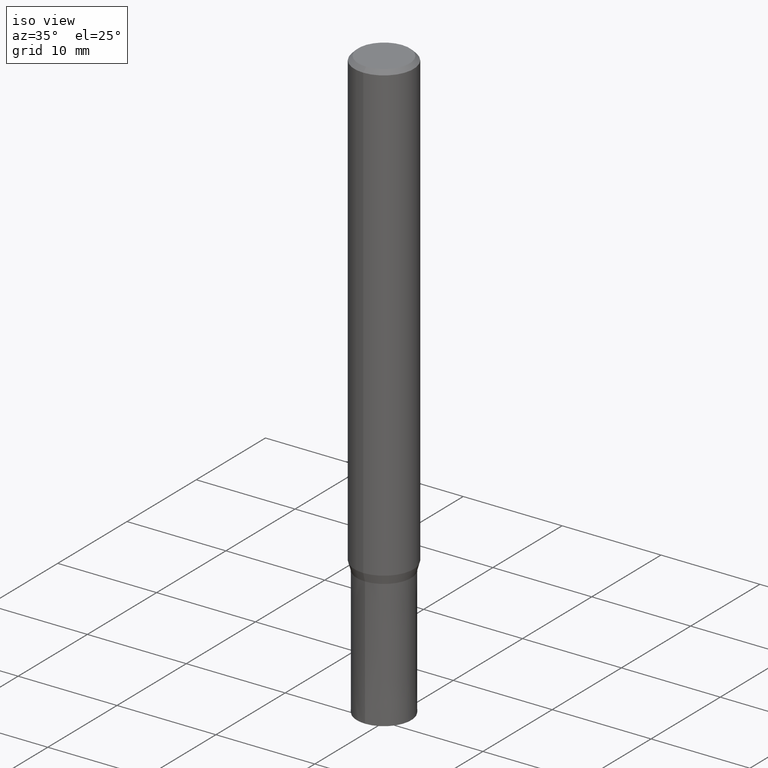
[diagram: clean part render]
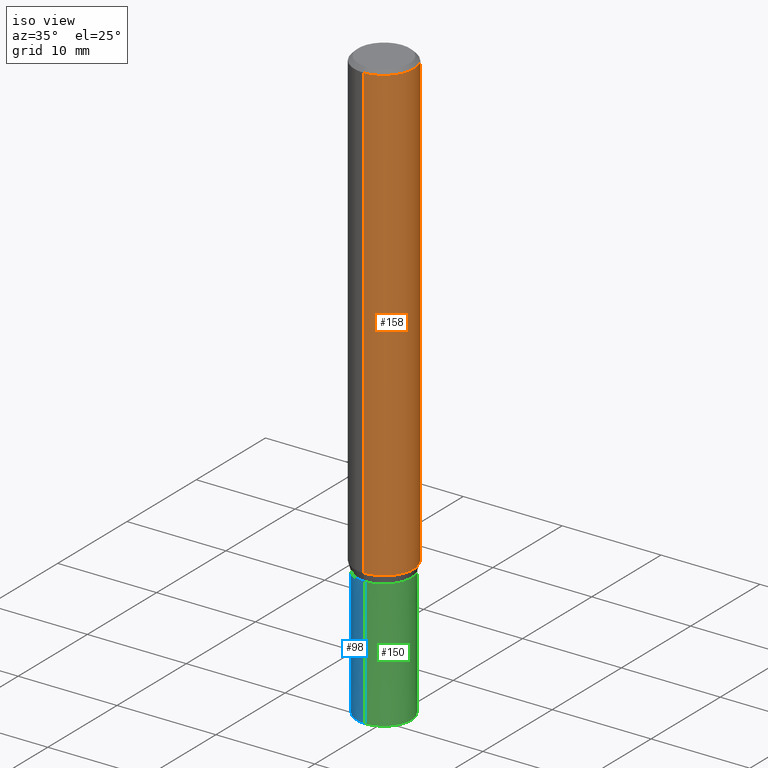
[diagram: same view with three faces highlighted in distinct colors, each labeled with its STEP entity id]
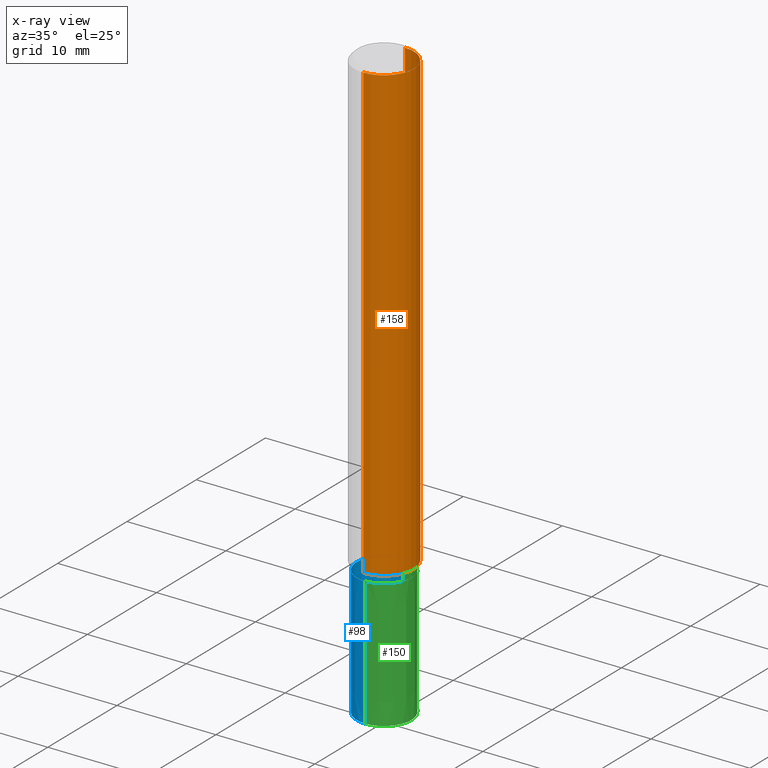
[diagram: x-ray of the same camera — body ghosted, the three highlighted faces saturated]
A machine part, iso view with three faces highlighted in distinct colors.
The next image is the same camera in x-ray (body ghosted, the three faces saturated) — at least one of them is partly hidden behind the body in this view.
Their STEP definitions:

[orange] entity #158 — the highlighted cylindrical surface (edge-blend (fillet) strip) has radius 3 mm, axis along (-0, -0, 1).
#90=EDGE_CURVE('',#136,#108,#212,.T.);
#108=VERTEX_POINT('',#234);
#116=EDGE_CURVE('',#152,#154,#242,.T.);
#136=VERTEX_POINT('',#264);
#138=EDGE_CURVE('',#136,#152,#266,.T.);
#152=VERTEX_POINT('',#283);
#154=VERTEX_POINT('',#285);
#158=ADVANCED_FACE('',(#289),#290,.T.);
#180=EDGE_CURVE('',#154,#108,#314,.T.);
#212=CIRCLE('',#341,3.0);
#234=CARTESIAN_POINT('',(3.67381906146713E-016,-3.0,-0.399999999999999));
#242=CIRCLE('',#379,3.0);
#264=CARTESIAN_POINT('',(0.0,3.0,-0.399999999999999));
#266=LINE('',#412,#413);
#283=CARTESIAN_POINT('',(0.0,3.0,-46.128));
#285=CARTESIAN_POINT('',(3.67381906146713E-016,-3.0,-46.128));
#289=FACE_OUTER_BOUND('',#439,.T.);
#290=CYLINDRICAL_SURFACE('',#440,3.0);
#314=LINE('',#466,#467);
#341=AXIS2_PLACEMENT_3D('',#487,#488,#489);
#379=AXIS2_PLACEMENT_3D('',#528,#529,#530);
#412=CARTESIAN_POINT('',(-3.67381906146713E-016,3.0,-23.264));
#413=VECTOR('',#554,1.0);
#439=EDGE_LOOP('',(#587,#588,#589,#590));
#440=AXIS2_PLACEMENT_3D('',#591,#592,#593);
#466=CARTESIAN_POINT('',(3.67381906146713E-016,-3.0,-23.264));
#467=VECTOR('',#616,1.0);
#487=CARTESIAN_POINT('',(0.0,0.0,-0.399999999999999));
#488=DIRECTION('',(0.0,0.0,-1.0));
#489=DIRECTION('',(0.0,1.0,0.0));
#528=CARTESIAN_POINT('',(0.0,0.0,-46.128));
#529=DIRECTION('',(0.0,0.0,-1.0));
#530=DIRECTION('',(0.0,1.0,0.0));
#554=DIRECTION('',(0.0,0.0,-1.0));
#587=ORIENTED_EDGE('',*,*,#138,.F.);
#588=ORIENTED_EDGE('',*,*,#90,.T.);
#589=ORIENTED_EDGE('',*,*,#180,.F.);
#590=ORIENTED_EDGE('',*,*,#116,.F.);
#591=CARTESIAN_POINT('',(0.0,0.0,-23.264));
#592=DIRECTION('',(-0.0,-0.0,1.0));
#593=DIRECTION('',(0.0,1.0,0.0));
#616=DIRECTION('',(-0.0,-0.0,1.0));

[blue] entity #98 — the highlighted conical surface has half-angle 0 deg.
#94=VERTEX_POINT('',#216);
#98=ADVANCED_FACE('',(#221),#222,.T.);
#100=EDGE_CURVE('',#112,#166,#224,.T.);
#112=VERTEX_POINT('',#238);
#120=VERTEX_POINT('',#247);
#124=EDGE_CURVE('',#94,#120,#251,.T.);
#132=EDGE_CURVE('',#94,#112,#260,.T.);
#160=EDGE_CURVE('',#166,#120,#292,.T.);
#166=VERTEX_POINT('',#298);
#216=CARTESIAN_POINT('',(3.36766747301154E-016,-2.75,-60.0));
#221=FACE_OUTER_BOUND('',#351,.T.);
#222=CONICAL_SURFACE('',#352,2.74995,7.6923076921722E-006);
#224=CIRCLE('',#355,2.7499);
#238=CARTESIAN_POINT('',(3.36754501237616E-016,-2.7499,-47.0));
#247=CARTESIAN_POINT('',(0.0,2.75,-60.0));
#251=CIRCLE('',#390,2.75);
#260=LINE('',#402,#403);
#292=LINE('',#443,#444);
#298=CARTESIAN_POINT('',(0.0,2.7499,-47.0));
#351=EDGE_LOOP('',(#500,#501,#502,#503));
#352=AXIS2_PLACEMENT_3D('',#504,#505,#506);
#355=AXIS2_PLACEMENT_3D('',#507,#508,#509);
#390=AXIS2_PLACEMENT_3D('',#542,#543,#544);
#402=CARTESIAN_POINT('',(3.36760624269385E-016,-2.74995,-53.5));
#403=VECTOR('',#552,1.0);
#443=CARTESIAN_POINT('',(-3.36760624269385E-016,2.74995,-53.5));
#444=VECTOR('',#594,1.0);
#500=ORIENTED_EDGE('',*,*,#160,.T.);
#501=ORIENTED_EDGE('',*,*,#124,.F.);
#502=ORIENTED_EDGE('',*,*,#132,.T.);
#503=ORIENTED_EDGE('',*,*,#100,.T.);
#504=CARTESIAN_POINT('',(0.0,0.0,-53.5));
#505=DIRECTION('',(0.0,-0.0,-1.0));
#506=DIRECTION('',(0.0,1.0,0.0));
#507=CARTESIAN_POINT('',(0.0,0.0,-47.0));
#508=DIRECTION('',(0.0,0.0,-1.0));
#509=DIRECTION('',(0.0,1.0,0.0));
#542=CARTESIAN_POINT('',(0.0,0.0,-60.0));
#543=DIRECTION('',(0.0,0.0,-1.0));
#544=DIRECTION('',(0.0,1.0,0.0));
#552=DIRECTION('',(-9.42004887529793E-022,7.69230769209634E-006,0.999999999970414));
#594=DIRECTION('',(-9.42004887529793E-022,7.69230769209634E-006,-0.999999999970414));

[green] entity #150 — the highlighted conical surface has half-angle 0 deg.
#92=EDGE_CURVE('',#166,#112,#214,.T.);
#94=VERTEX_POINT('',#216);
#112=VERTEX_POINT('',#238);
#120=VERTEX_POINT('',#247);
#122=EDGE_CURVE('',#120,#94,#249,.T.);
#132=EDGE_CURVE('',#94,#112,#260,.T.);
#150=ADVANCED_FACE('',(#280),#281,.T.);
#160=EDGE_CURVE('',#166,#120,#292,.T.);
#166=VERTEX_POINT('',#298);
#214=CIRCLE('',#344,2.7499);
#216=CARTESIAN_POINT('',(3.36766747301154E-016,-2.75,-60.0));
#238=CARTESIAN_POINT('',(3.36754501237616E-016,-2.7499,-47.0));
#247=CARTESIAN_POINT('',(0.0,2.75,-60.0));
#249=CIRCLE('',#387,2.75);
#260=LINE('',#402,#403);
#280=FACE_OUTER_BOUND('',#429,.T.);
#281=CONICAL_SURFACE('',#430,2.74995,7.6923076921722E-006);
#292=LINE('',#443,#444);
#298=CARTESIAN_POINT('',(0.0,2.7499,-47.0));
#344=AXIS2_PLACEMENT_3D('',#490,#491,#492);
#387=AXIS2_PLACEMENT_3D('',#539,#540,#541);
#402=CARTESIAN_POINT('',(3.36760624269385E-016,-2.74995,-53.5));
#403=VECTOR('',#552,1.0);
#429=EDGE_LOOP('',(#576,#577,#578,#579));
#430=AXIS2_PLACEMENT_3D('',#580,#581,#582);
#443=CARTESIAN_POINT('',(-3.36760624269385E-016,2.74995,-53.5));
#444=VECTOR('',#594,1.0);
#490=CARTESIAN_POINT('',(0.0,0.0,-47.0));
#491=DIRECTION('',(0.0,0.0,-1.0));
#492=DIRECTION('',(0.0,1.0,0.0));
#539=CARTESIAN_POINT('',(0.0,0.0,-60.0));
#540=DIRECTION('',(0.0,0.0,-1.0));
#541=DIRECTION('',(0.0,1.0,0.0));
#552=DIRECTION('',(-9.42004887529793E-022,7.69230769209634E-006,0.999999999970414));
#576=ORIENTED_EDGE('',*,*,#160,.F.);
#577=ORIENTED_EDGE('',*,*,#92,.T.);
#578=ORIENTED_EDGE('',*,*,#132,.F.);
#579=ORIENTED_EDGE('',*,*,#122,.F.);
#580=CARTESIAN_POINT('',(0.0,0.0,-53.5));
#581=DIRECTION('',(0.0,-0.0,-1.0));
#582=DIRECTION('',(0.0,1.0,0.0));
#594=DIRECTION('',(-9.42004887529793E-022,7.69230769209634E-006,-0.999999999970414));